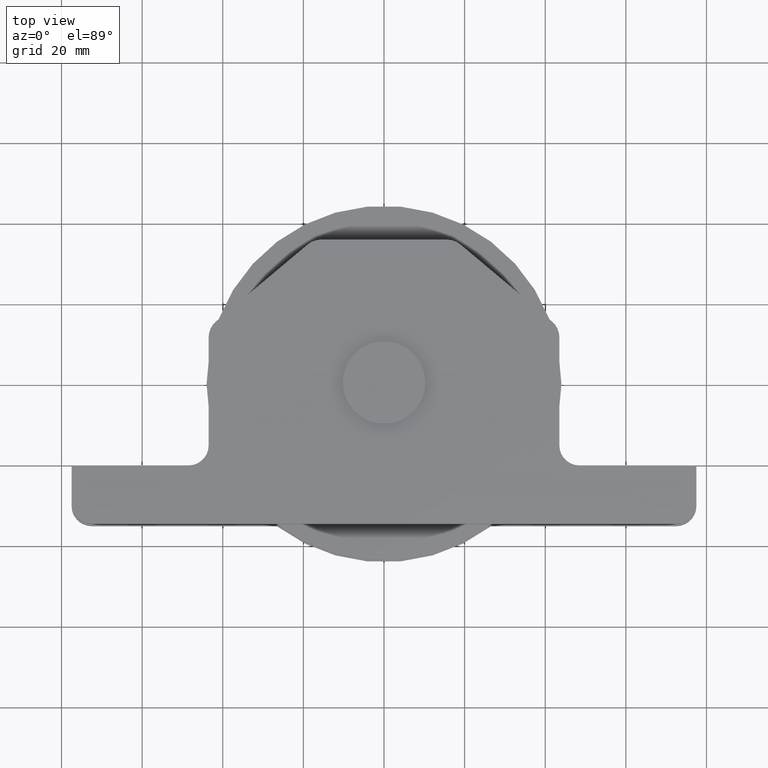
[diagram: clean part render]
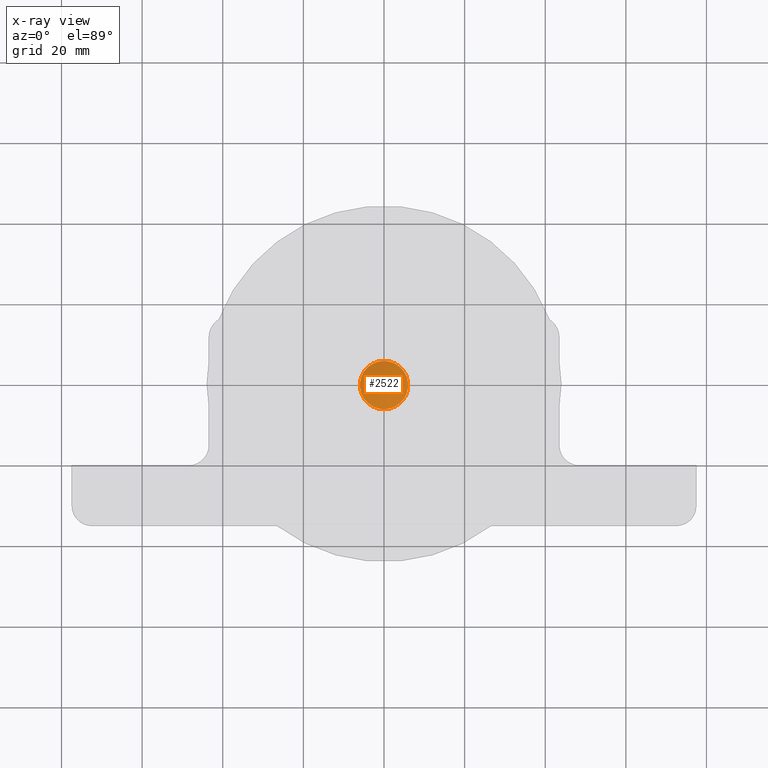
[diagram: x-ray — body ghosted, one internal face saturated and labeled with its STEP entity id]
A machine part, top view, then the same camera in x-ray: the body is ghosted and one INTERNAL B-rep face — a face not visible from any outside direction — is saturated and labeled: STEP entity #2522.
In plain terms, the highlighted conical surface has half-angle 63.435 deg.
Its self-contained STEP definition (entity closure, byte-faithful):
#51 = CIRCLE ( 'NONE', #448, 6.000000000000000000 ) ;
#316 = EDGE_CURVE ( 'NONE', #2607, #2607, #51, .T. ) ;
#448 = AXIS2_PLACEMENT_3D ( 'NONE', #12418, #10270, #11355 ) ;
#2522 = ADVANCED_FACE ( 'NONE', ( #8210 ), #9923, .F. ) ;
#2607 = VERTEX_POINT ( 'NONE', #5453 ) ;
#5453 = CARTESIAN_POINT ( 'NONE',  ( 0.0000000000000000000, 6.000000000000000000, -17.00000000000000000 ) ) ;
#5653 = EDGE_LOOP ( 'NONE', ( #7911 ) ) ;
#7911 = ORIENTED_EDGE ( 'NONE', *, *, #316, .T. ) ;
#8202 = DIRECTION ( 'NONE',  ( 0.0000000000000000000, 1.000000000000000000, 0.0000000000000000000 ) ) ;
#8210 = FACE_OUTER_BOUND ( 'NONE', #5653, .T. ) ;
#9259 = DIRECTION ( 'NONE',  ( -0.0000000000000000000, 1.224646799147353500E-016, -1.000000000000000000 ) ) ;
#9923 = CONICAL_SURFACE ( 'NONE', #12872, 6.000000000000000000, 1.107148717794090600 ) ;
#10270 = DIRECTION ( 'NONE',  ( -0.0000000000000000000, 1.224646799147353500E-016, -1.000000000000000000 ) ) ;
#10339 = CARTESIAN_POINT ( 'NONE',  ( 0.0000000000000000000, 8.998558695971150000E-032, -17.00000000000000000 ) ) ;
#11355 = DIRECTION ( 'NONE',  ( 0.0000000000000000000, 1.000000000000000000, 0.0000000000000000000 ) ) ;
#12418 = CARTESIAN_POINT ( 'NONE',  ( 0.0000000000000000000, 8.998558695971150000E-032, -17.00000000000000000 ) ) ;
#12872 = AXIS2_PLACEMENT_3D ( 'NONE', #10339, #9259, #8202 ) ;